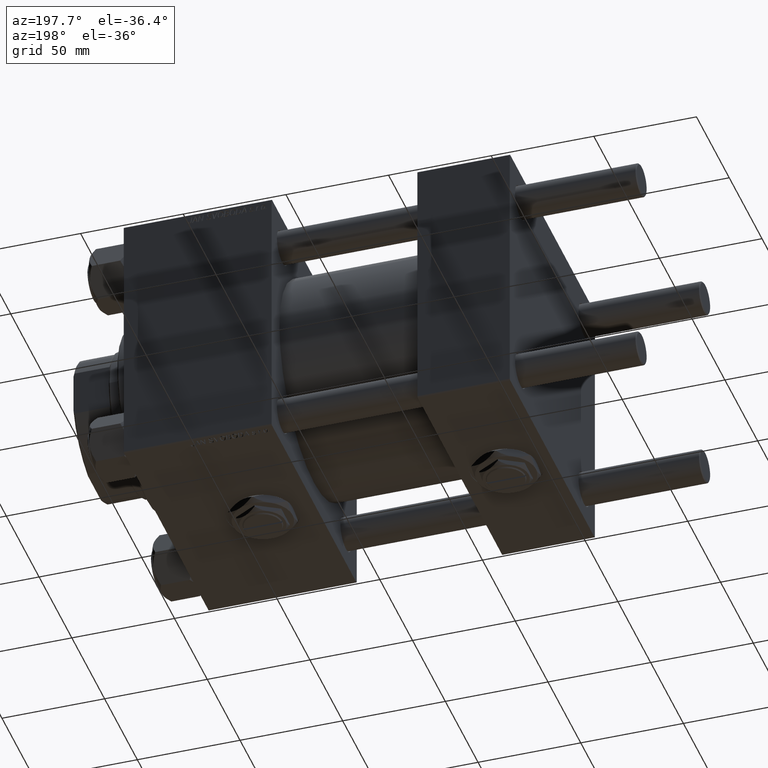
[diagram: clean part render]
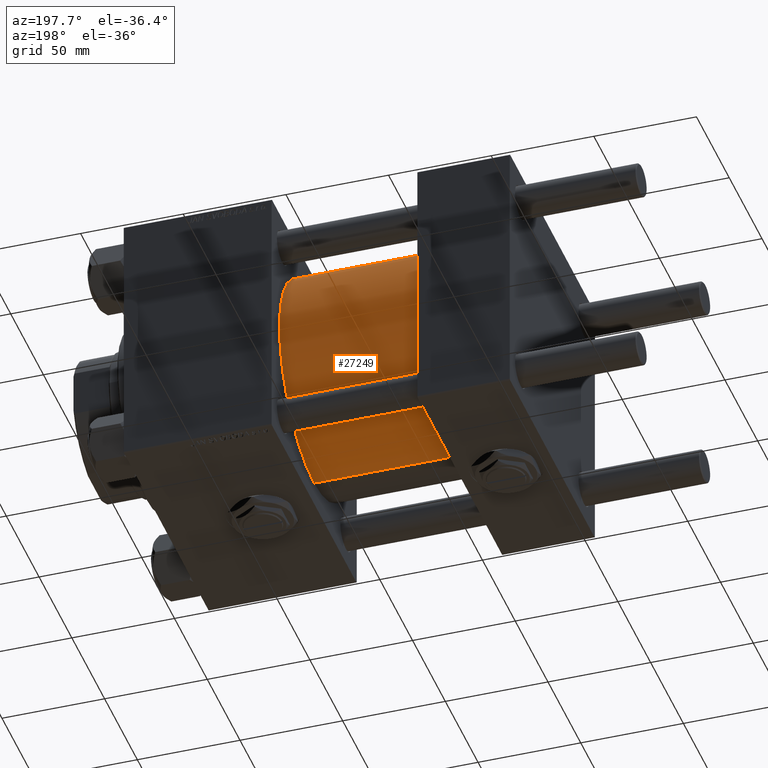
[diagram: same view with one face highlighted and labeled with its STEP entity id]
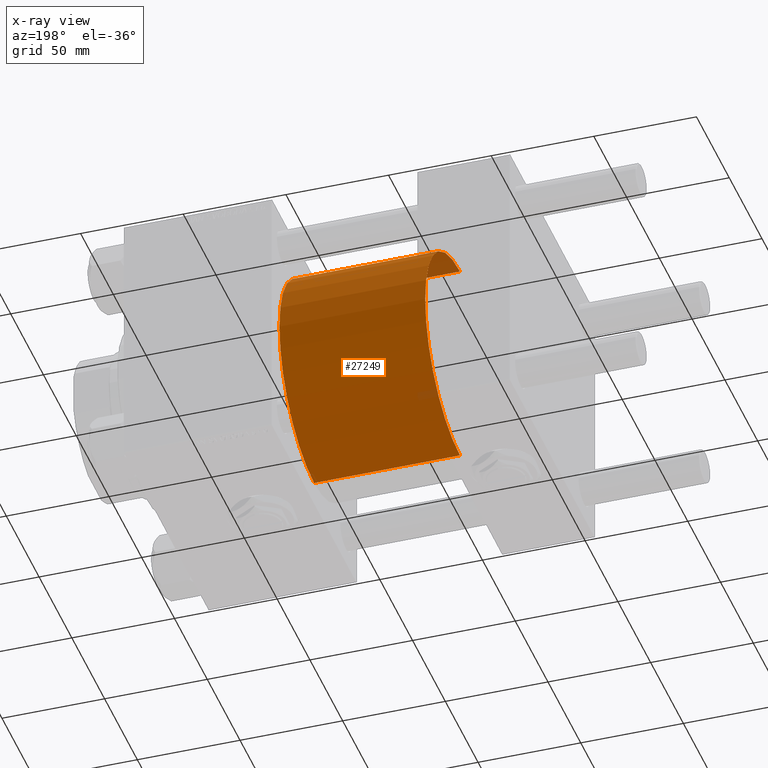
[diagram: x-ray of the same camera — body ghosted, the highlighted face saturated]
A machine part, auxiliary view. The second image highlights one B-rep face of the part: STEP entity #27249.
The next image is the same camera in x-ray: the body ghosted, the highlighted face saturated — about 2% of this face is hidden behind the body in this view.
In plain terms, the highlighted cylindrical surface (partial cylindrical patch) has radius 53 mm, axis along (-1, -0, -0).
Its self-contained STEP definition (entity closure, byte-faithful):
#2510 = AXIS2_PLACEMENT_3D ( 'NONE', #28234, #47645, #47909 ) ;
#3365 = CARTESIAN_POINT ( 'NONE',  ( 45.00000000000000000, 6.490628035480973107E-15, -53.00000000000000711 ) ) ;
#3882 = DIRECTION ( 'NONE',  ( -1.000000000000000000, -0.000000000000000000, -0.000000000000000000 ) ) ;
#9788 = VECTOR ( 'NONE', #3882, 1000.000000000000000 ) ;
#12129 = CYLINDRICAL_SURFACE ( 'NONE', #28458, 53.00000000000000711 ) ;
#14370 = CIRCLE ( 'NONE', #2510, 53.00000000000000711 ) ;
#14999 = VERTEX_POINT ( 'NONE', #3365 ) ;
#15219 = EDGE_CURVE ( 'NONE', #33713, #14999, #42846, .T. ) ;
#16133 = FACE_OUTER_BOUND ( 'NONE', #43720, .T. ) ;
#18038 = CARTESIAN_POINT ( 'NONE',  ( 115.9999999999999858, 0.000000000000000000, 53.00000000000000711 ) ) ;
#22410 = CARTESIAN_POINT ( 'NONE',  ( 115.9999999999999858, 6.490628035480973107E-15, -53.00000000000000711 ) ) ;
#22670 = DIRECTION ( 'NONE',  ( -1.000000000000000000, -0.000000000000000000, -0.000000000000000000 ) ) ;
#23252 = LINE ( 'NONE', #35471, #9788 ) ;
#24675 = CARTESIAN_POINT ( 'NONE',  ( 115.9999999999999858, 0.000000000000000000, 0.000000000000000000 ) ) ;
#25902 = EDGE_CURVE ( 'NONE', #50401, #34065, #23252, .T. ) ;
#27249 = ADVANCED_FACE ( 'NONE', ( #16133 ), #12129, .T. ) ;
#28234 = CARTESIAN_POINT ( 'NONE',  ( 45.00000000000000000, 0.000000000000000000, 0.000000000000000000 ) ) ;
#28303 = CARTESIAN_POINT ( 'NONE',  ( 115.9999999999999858, 0.000000000000000000, 0.000000000000000000 ) ) ;
#28458 = AXIS2_PLACEMENT_3D ( 'NONE', #28303, #41055, #32819 ) ;
#32282 = EDGE_CURVE ( 'NONE', #33713, #50401, #33735, .T. ) ;
#32397 = ORIENTED_EDGE ( 'NONE', *, *, #32282, .F. ) ;
#32644 = DIRECTION ( 'NONE',  ( 1.000000000000000000, 0.000000000000000000, 0.000000000000000000 ) ) ;
#32819 = DIRECTION ( 'NONE',  ( 0.000000000000000000, 0.000000000000000000, 1.000000000000000000 ) ) ;
#33505 = ORIENTED_EDGE ( 'NONE', *, *, #40165, .T. ) ;
#33713 = VERTEX_POINT ( 'NONE', #38598 ) ;
#33735 = CIRCLE ( 'NONE', #50698, 53.00000000000000711 ) ;
#34065 = VERTEX_POINT ( 'NONE', #48085 ) ;
#35471 = CARTESIAN_POINT ( 'NONE',  ( 115.9999999999999858, 0.000000000000000000, 53.00000000000000711 ) ) ;
#38598 = CARTESIAN_POINT ( 'NONE',  ( 115.9999999999999858, 6.490628035480973107E-15, -53.00000000000000711 ) ) ;
#40165 = EDGE_CURVE ( 'NONE', #14999, #34065, #14370, .T. ) ;
#41055 = DIRECTION ( 'NONE',  ( -1.000000000000000000, -0.000000000000000000, -0.000000000000000000 ) ) ;
#42554 = VECTOR ( 'NONE', #22670, 1000.000000000000000 ) ;
#42815 = ORIENTED_EDGE ( 'NONE', *, *, #15219, .T. ) ;
#42846 = LINE ( 'NONE', #22410, #42554 ) ;
#43720 = EDGE_LOOP ( 'NONE', ( #32397, #42815, #33505, #50751 ) ) ;
#47645 = DIRECTION ( 'NONE',  ( 1.000000000000000000, -0.000000000000000000, 0.000000000000000000 ) ) ;
#47909 = DIRECTION ( 'NONE',  ( 0.000000000000000000, 0.000000000000000000, 1.000000000000000000 ) ) ;
#48085 = CARTESIAN_POINT ( 'NONE',  ( 45.00000000000000000, 0.000000000000000000, 53.00000000000000711 ) ) ;
#48843 = DIRECTION ( 'NONE',  ( 0.000000000000000000, 0.000000000000000000, -1.000000000000000000 ) ) ;
#50401 = VERTEX_POINT ( 'NONE', #18038 ) ;
#50698 = AXIS2_PLACEMENT_3D ( 'NONE', #24675, #32644, #48843 ) ;
#50751 = ORIENTED_EDGE ( 'NONE', *, *, #25902, .F. ) ;